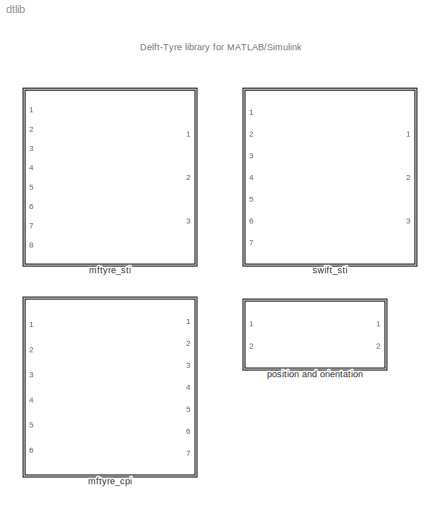
MODEL dtlib
KIND library
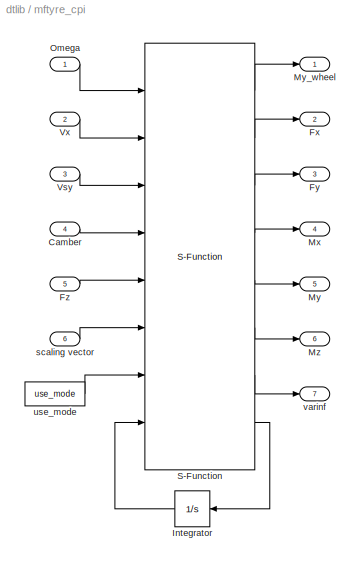
BLOCK [SubSystem] mftyre_cpi
  MaskCallbackString = ||
  MaskDescription = DELFT TYRE Magic Formula for Matlab\nMF-Tyre 5.2, MF-MCTyre 1.1\n\nCONTACT POINT  INTERFACE\n\n<copyright redacted>\nThe Netherlands
  MaskDisplay = image(imread('dtlogo.jpg','jpg'))\n\nport_label('input',1,'Omega')\nport_label('input',2,'Vx')\nport_label('input',3,'Vsy')\nport_label('input',4,'Camber')\nport_label('input',5,'Fz')\nport_label('input',6,'scaling vector')\n\nport_label('output',1,'My_wheel')\nport_label('output',2,'Fx')\nport_label('output',3,'Fy')\nport_label('output',4,'Mx')\nport_label('output',5,'My')\nport_label('output',6,...<+40ch>
  MaskEnableString = on,on,on
  MaskHelp = <!doctype html public \"-//w3c//dtd html 4.0 transitional//en\">\n<html>\n<head>\n   <meta http-equiv=\"Content-Type\" content=\"text/html; charset=iso-8859-1\">\n   <meta name=\"GENERATOR\" content=\"Mozilla/4.72 [en] (X11; I; SunOS 5.7 sun4u) [Netscape]\">\n</head>\n<body>\n<font size=+1><b>MFTYRE_CPI: </b>MF-Tyre with Contact Point Interface.</font><p><font size=+1>Calculates tyre forces and mo...<+4156ch>
  MaskIconFrame = on
  MaskIconOpaque = off
  MaskIconRotate = none
  MaskIconUnits = pixels
  MaskPromptString = Tyre ID [integer]|TYPARR [double array]|Use mode [integer]
  MaskStyleString = edit,edit,edit
  MaskToolTipString = on,on,on
  MaskTunableValueString = on,on,on
  MaskType = MFTYRE_CPI
  MaskValueString = 1|mfread('mft_car175_70R13.tir')|4
  MaskVariableAliases = ,,
  MaskVariables = idtyre=@1;typarr=@2;use_mode=@3;
  MaskVisibilityString = on,on,on
  Ports = [6, 7]
  RTWFcnNameOpts = Auto
  RTWFileNameOpts = Auto
  RTWSystemCode = Auto
  ShowPortLabels = on
  TreatAsAtomicUnit = off
BLOCK [Inport] mftyre_cpi/Camber
  Interpolate = on
  LatchInput = off
  Port = 4
BLOCK [Outport] mftyre_cpi/Fx
  InitialOutput = []
  OutputWhenDisabled = held
  Port = 2
BLOCK [Outport] mftyre_cpi/Fy
  InitialOutput = []
  OutputWhenDisabled = held
  Port = 3
BLOCK [Inport] mftyre_cpi/Fz
  Interpolate = on
  LatchInput = off
  Port = 5
BLOCK [Integrator] mftyre_cpi/Integrator
  AbsoluteTolerance = auto
  ExternalReset = none
  InitialCondition = 0
  InitialConditionSource = internal
  LimitOutput = off
  LowerSaturationLimit = -inf
  Ports = [1, 1]
  ShowSaturationPort = off
  ShowStatePort = off
  UpperSaturationLimit = inf
BLOCK [Outport] mftyre_cpi/Mx
  InitialOutput = []
  OutputWhenDisabled = held
  Port = 4
BLOCK [Outport] mftyre_cpi/My
  InitialOutput = []
  OutputWhenDisabled = held
  Port = 5
BLOCK [Outport] mftyre_cpi/My_wheel
  InitialOutput = []
  OutputWhenDisabled = held
  Port = 1
BLOCK [Outport] mftyre_cpi/Mz
  InitialOutput = []
  OutputWhenDisabled = held
  Port = 6
BLOCK [Inport] mftyre_cpi/Omega
  Interpolate = on
  LatchInput = off
  Port = 1
BLOCK [S-Function] mftyre_cpi/S-Function
  FunctionName = s_mftyre_cpi
  Parameters = idtyre typarr
  PortCounts = []
  Ports = [8, 8]
  SFunctionModules = ''
BLOCK [Inport] mftyre_cpi/Vsy
  Interpolate = on
  LatchInput = off
  Port = 3
BLOCK [Inport] mftyre_cpi/Vx
  Interpolate = on
  LatchInput = off
  Port = 2
BLOCK [Inport] mftyre_cpi/scaling vector
  Interpolate = on
  LatchInput = off
  Port = 6
BLOCK [Constant] mftyre_cpi/use_mode
  Value = use_mode
  VectorParams1D = on
BLOCK [Outport] mftyre_cpi/varinf
  InitialOutput = []
  OutputWhenDisabled = held
  Port = 7
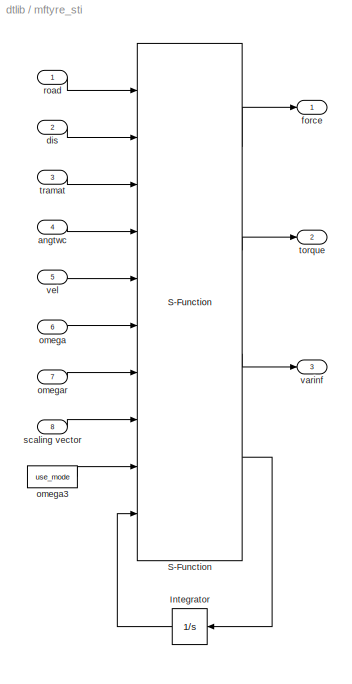
BLOCK [SubSystem] mftyre_sti
  MaskCallbackString = ||
  MaskDescription = DELFT TYRE Magic Formula for Matlab\nMF-Tyre 5.2, MF-MCTyre 1.1\n\nSTANDARD TYRE INTERFACE (STI 1.4)\n\n<copyright redacted>\nThe Netherlands
  MaskDisplay = image(imread('dtlogo.jpg','jpg'))\n\nport_label('input',1,'road')\nport_label('input',2,'dis')\nport_label('input',3,'tramat')\nport_label('input',4,'angtwc')\nport_label('input',5,'vel')\nport_label('input',6,'omega')\nport_label('input',7,'omegar')\nport_label('input',8,'scaling vector')\n\nport_label('output',1,'force')\nport_label('output',2,'torque')\nport_label('output',3,'varinf')
  MaskEnableString = on,on,on
  MaskHelp = <!doctype html public \"-//w3c//dtd html 4.0 transitional//en\">\n<html>\n<head>\n   <meta http-equiv=\"Content-Type\" content=\"text/html; charset=iso-8859-1\">\n   <meta name=\"GENERATOR\" content=\"Mozilla/4.72 [en] (X11; I; SunOS 5.7 sun4u) [Netscape]\">\n</head>\n<body>\n<font size=+1><b>MFTYRE_STI</b>: MF-Tyre with Standard Tyre Interface</font>\n<p><font size=+1>Calculates tyre forces and m...<+7779ch>
  MaskIconFrame = on
  MaskIconOpaque = off
  MaskIconRotate = none
  MaskIconUnits = pixels
  MaskPromptString = Tyre ID [integer]|TYPARR [double array]|Use mode [integer]
  MaskStyleString = edit,edit,edit
  MaskToolTipString = on,on,on
  MaskTunableValueString = on,on,on
  MaskType = MFTYRE_STI
  MaskValueString = 1|mfread('mft_car175_70R13.tir')|4
  MaskVariableAliases = ,,
  MaskVariables = idtyre=@1;typarr=@2;use_mode=@3;
  MaskVisibilityString = on,on,on
  Ports = [8, 3]
  RTWFcnNameOpts = Auto
  RTWFileNameOpts = Auto
  RTWSystemCode = Auto
  ShowPortLabels = on
  TreatAsAtomicUnit = off
BLOCK [Integrator] mftyre_sti/Integrator
  AbsoluteTolerance = auto
  ExternalReset = none
  InitialCondition = [0 0]
  InitialConditionSource = internal
  LimitOutput = off
  LowerSaturationLimit = -inf
  Ports = [1, 1]
  ShowSaturationPort = off
  ShowStatePort = off
  UpperSaturationLimit = inf
BLOCK [S-Function] mftyre_sti/S-Function
  FunctionName = s_mftyre_sti
  MaskIconFrame = on
  MaskIconOpaque = on
  MaskIconRotate = none
  MaskIconUnits = autoscale
  Parameters = idtyre typarr
  PortCounts = []
  Ports = [10, 4]
  SFunctionModules = ''
BLOCK [Inport] mftyre_sti/angtwc
  Interpolate = on
  LatchInput = off
  Port = 4
BLOCK [Inport] mftyre_sti/dis
  Interpolate = on
  LatchInput = off
  Port = 2
BLOCK [Outport] mftyre_sti/force
  InitialOutput = []
  OutputWhenDisabled = held
  Port = 1
BLOCK [Inport] mftyre_sti/omega
  Interpolate = on
  LatchInput = off
  Port = 6
BLOCK [Constant] mftyre_sti/omega3
  Value = use_mode
  VectorParams1D = on
BLOCK [Inport] mftyre_sti/omegar
  Interpolate = on
  LatchInput = off
  Port = 7
BLOCK [Inport] mftyre_sti/road
  Interpolate = on
  LatchInput = off
  Port = 1
BLOCK [Inport] mftyre_sti/scaling vector
  Interpolate = on
  LatchInput = off
  Port = 8
BLOCK [Outport] mftyre_sti/torque
  InitialOutput = []
  OutputWhenDisabled = held
  Port = 2
BLOCK [Inport] mftyre_sti/tramat
  Interpolate = on
  LatchInput = off
  Port = 3
BLOCK [Outport] mftyre_sti/varinf
  InitialOutput = []
  OutputWhenDisabled = held
  Port = 3
BLOCK [Inport] mftyre_sti/vel
  Interpolate = on
  LatchInput = off
  Port = 5
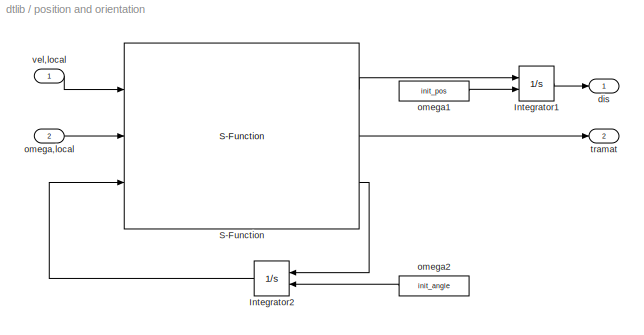
BLOCK [SubSystem] position and orientation
  MaskCallbackString = |
  MaskDescription = DELFT TYRE Local 2 global transformation for Matlab\nfor use with Standard Tyre Interface (STI).\n\nSTANDARD TYRE INTERFACE (STI 1.4)\n\n<copyright redacted>\nThe Netherlands
  MaskEnableString = on,on
  MaskHelp = <!doctype html public \"-//w3c//dtd html 4.0 transitional//en\">\n<html>\n<head>\n   <meta http-equiv=\"Content-Type\" content=\"text/html; charset=iso-8859-1\">\n   <meta name=\"GENERATOR\" content=\"Mozilla/4.72 [en] (X11; I; SunOS 5.7 sun4u) [Netscape]\">\n</head>\n<body>\n<font size=+1><b>Position and orientation</b>: </font><font size=\"4\">Calculation \nof transformation matrix and global po...<+1835ch>
  MaskIconFrame = on
  MaskIconOpaque = off
  MaskIconRotate = none
  MaskIconUnits = pixels
  MaskPromptString = Wheel center position (global)|Wheel center orientation (global, Bryant angles, rotation seq. ZXY)
  MaskStyleString = edit,edit
  MaskToolTipString = on,on
  MaskTunableValueString = on,on
  MaskType = Position and Orientation
  MaskValueString = [0 0 0.28]|[0 0 0]
  MaskVariableAliases = ,
  MaskVariables = init_pos=@1;init_angle=@2;
  MaskVisibilityString = on,on
  Ports = [2, 2]
  RTWFcnNameOpts = Auto
  RTWFileNameOpts = Auto
  RTWSystemCode = Auto
  ShowPortLabels = on
  TreatAsAtomicUnit = off
BLOCK [Integrator] position and orientation/Integrator1
  AbsoluteTolerance = auto
  ExternalReset = none
  InitialCondition = 0
  InitialConditionSource = external
  LimitOutput = off
  LowerSaturationLimit = -inf
  Ports = [2, 1]
  ShowSaturationPort = off
  ShowStatePort = off
  UpperSaturationLimit = inf
BLOCK [Integrator] position and orientation/Integrator2
  AbsoluteTolerance = auto
  ExternalReset = none
  InitialCondition = 0
  InitialConditionSource = external
  LimitOutput = off
  LowerSaturationLimit = -inf
  Ports = [2, 1]
  ShowSaturationPort = off
  ShowStatePort = off
  UpperSaturationLimit = inf
BLOCK [S-Function] position and orientation/S-Function
  FunctionName = s_local2global
  MaskIconFrame = on
  MaskIconOpaque = on
  MaskIconRotate = none
  MaskIconUnits = autoscale
  PortCounts = []
  Ports = [3, 3]
  SFunctionModules = ''
BLOCK [Outport] position and orientation/dis
  InitialOutput = []
  OutputWhenDisabled = held
  Port = 1
BLOCK [Inport] position and orientation/omega,local
  Interpolate = on
  LatchInput = off
  Port = 2
BLOCK [Constant] position and orientation/omega1
  Value = init_pos
  VectorParams1D = on
BLOCK [Constant] position and orientation/omega2
  Value = init_angle
  VectorParams1D = on
BLOCK [Outport] position and orientation/tramat
  InitialOutput = []
  OutputWhenDisabled = held
  Port = 2
BLOCK [Inport] position and orientation/vel,local
  Interpolate = on
  LatchInput = off
  Port = 1
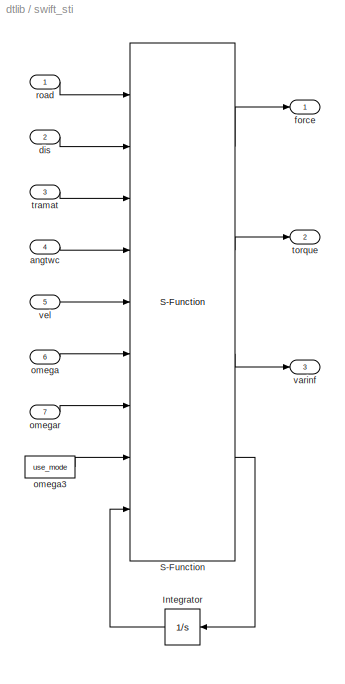
BLOCK [SubSystem] swift_sti
  MaskCallbackString = ||||
  MaskDescription = DELFT TYRE Magic Formula for Matlab\nSWIFT-Tyre 1.1\n\nSTANDARD TYRE INTERFACE (STI 1.4)\n\n<copyright redacted>\nThe Netherlands
  MaskDisplay = image(imread('dtlogo.jpg','jpg'))\n\nport_label('input',1,'road')\nport_label('input',2,'dis')\nport_label('input',3,'tramat')\nport_label('input',4,'angtwc')\nport_label('input',5,'vel')\nport_label('input',6,'omega')\nport_label('input',7,'omegar')\n\nport_label('output',1,'force')\nport_label('output',2,'torque')\nport_label('output',3,'varinf')
  MaskEnableString = on,on,on,on,on
  MaskHelp = <!doctype html public \"-//w3c//dtd html 4.0 transitional//en\">\n<html>\n<head>\n   <meta http-equiv=\"Content-Type\" content=\"text/html; charset=iso-8859-1\">\n   <meta name=\"GENERATOR\" content=\"Mozilla/4.72 [en] (X11; I; SunOS 5.7 sun4u) [Netscape]\">\n</head>\n<body>\n<font size=+1><b>SWIFT_STI</b>: SWIFT-Tyre with Standard Tyre Interface</font>\n<p><font size=+1>Calculates tyre forces and...<+6492ch>
  MaskIconFrame = on
  MaskIconOpaque = off
  MaskIconRotate = none
  MaskIconUnits = pixels
  MaskInitialization = idroad=1;\nif (road_popup==2)\n  idroad=100;\nend
  MaskPromptString = Tyre ID [integer]|Use mode [integer]|Tyre property file [string]|Road|Road data file [string]
  MaskStyleString = edit,edit,edit,popup(External input (smooth road)|Data file (effective inputs)),edit
  MaskToolTipString = on,on,on,on,on
  MaskTunableValueString = on,on,on,on,on
  MaskType = SWIFT_STI
  MaskValueString = 1|24|'swt_car205_60R15.tir'|Data file (effective inputs)|'swt_road.rdf'
  MaskVariableAliases = ,,,,
  MaskVariables = idtyre=@1;use_mode=@2;tpfname=@3;road_popup=@4;rdfname=@5;
  MaskVisibilityString = on,on,on,on,on
  Ports = [7, 3]
  RTWFcnNameOpts = Auto
  RTWFileNameOpts = Auto
  RTWSystemCode = Auto
  ShowPortLabels = on
  TreatAsAtomicUnit = off
BLOCK [Integrator] swift_sti/Integrator
  AbsoluteTolerance = auto
  ExternalReset = none
  InitialCondition = [0 0 0 0 0 0 0 0 0 0 0 0 0 0 0 0 0 0 0 0 0 0 0 0 0 0 0 0 0 0]
  InitialConditionSource = internal
  LimitOutput = off
  LowerSaturationLimit = -inf
  Ports = [1, 1]
  ShowSaturationPort = off
  ShowStatePort = off
  UpperSaturationLimit = inf
BLOCK [S-Function] swift_sti/S-Function
  FunctionName = s_swift_sti
  Parameters = idtyre idroad tpfname rdfname
  PortCounts = []
  Ports = [9, 4]
  SFunctionModules = ''
BLOCK [Inport] swift_sti/angtwc
  Interpolate = on
  LatchInput = off
  Port = 4
BLOCK [Inport] swift_sti/dis
  Interpolate = on
  LatchInput = off
  Port = 2
BLOCK [Outport] swift_sti/force
  InitialOutput = []
  OutputWhenDisabled = held
  Port = 1
BLOCK [Inport] swift_sti/omega
  Interpolate = on
  LatchInput = off
  Port = 6
BLOCK [Constant] swift_sti/omega3
  Value = use_mode
  VectorParams1D = on
BLOCK [Inport] swift_sti/omegar
  Interpolate = on
  LatchInput = off
  Port = 7
BLOCK [Inport] swift_sti/road
  Interpolate = on
  LatchInput = off
  Port = 1
BLOCK [Outport] swift_sti/torque
  InitialOutput = []
  OutputWhenDisabled = held
  Port = 2
BLOCK [Inport] swift_sti/tramat
  Interpolate = on
  LatchInput = off
  Port = 3
BLOCK [Outport] swift_sti/varinf
  InitialOutput = []
  OutputWhenDisabled = held
  Port = 3
BLOCK [Inport] swift_sti/vel
  Interpolate = on
  LatchInput = off
  Port = 5
LINE mftyre_cpi/Camber:1 -> mftyre_cpi/S-Function:4
LINE mftyre_cpi/Fz:1 -> mftyre_cpi/S-Function:5
LINE mftyre_cpi/Integrator:1 -> mftyre_cpi/S-Function:8
LINE mftyre_cpi/Omega:1 -> mftyre_cpi/S-Function:1
LINE mftyre_cpi/S-Function:1 -> mftyre_cpi/My_wheel:1
LINE mftyre_cpi/S-Function:2 -> mftyre_cpi/Fx:1
LINE mftyre_cpi/S-Function:3 -> mftyre_cpi/Fy:1
LINE mftyre_cpi/S-Function:4 -> mftyre_cpi/Mx:1
LINE mftyre_cpi/S-Function:5 -> mftyre_cpi/My:1
LINE mftyre_cpi/S-Function:6 -> mftyre_cpi/Mz:1
LINE mftyre_cpi/S-Function:7 -> mftyre_cpi/varinf:1
LINE mftyre_cpi/S-Function:8 -> mftyre_cpi/Integrator:1
LINE mftyre_cpi/Vsy:1 -> mftyre_cpi/S-Function:3
LINE mftyre_cpi/Vx:1 -> mftyre_cpi/S-Function:2
LINE mftyre_cpi/scaling vector:1 -> mftyre_cpi/S-Function:6
LINE mftyre_cpi/use_mode:1 -> mftyre_cpi/S-Function:7
LINE mftyre_sti/Integrator:1 -> mftyre_sti/S-Function:10
LINE mftyre_sti/S-Function:1 -> mftyre_sti/force:1
LINE mftyre_sti/S-Function:2 -> mftyre_sti/torque:1
LINE mftyre_sti/S-Function:3 -> mftyre_sti/varinf:1
LINE mftyre_sti/S-Function:4 -> mftyre_sti/Integrator:1
LINE mftyre_sti/angtwc:1 -> mftyre_sti/S-Function:4
LINE mftyre_sti/dis:1 -> mftyre_sti/S-Function:2
LINE mftyre_sti/omega3:1 -> mftyre_sti/S-Function:9
LINE mftyre_sti/omega:1 -> mftyre_sti/S-Function:6
LINE mftyre_sti/omegar:1 -> mftyre_sti/S-Function:7
LINE mftyre_sti/road:1 -> mftyre_sti/S-Function:1
LINE mftyre_sti/scaling vector:1 -> mftyre_sti/S-Function:8
LINE mftyre_sti/tramat:1 -> mftyre_sti/S-Function:3
LINE mftyre_sti/vel:1 -> mftyre_sti/S-Function:5
LINE position and orientation/Integrator1:1 -> position and orientation/dis:1
LINE position and orientation/Integrator2:1 -> position and orientation/S-Function:3
LINE position and orientation/S-Function:1 -> position and orientation/Integrator1:1
LINE position and orientation/S-Function:2 -> position and orientation/tramat:1
LINE position and orientation/S-Function:3 -> position and orientation/Integrator2:1
LINE position and orientation/omega,local:1 -> position and orientation/S-Function:2
LINE position and orientation/omega1:1 -> position and orientation/Integrator1:2
LINE position and orientation/omega2:1 -> position and orientation/Integrator2:2
LINE position and orientation/vel,local:1 -> position and orientation/S-Function:1
LINE swift_sti/Integrator:1 -> swift_sti/S-Function:9
LINE swift_sti/S-Function:1 -> swift_sti/force:1
LINE swift_sti/S-Function:2 -> swift_sti/torque:1
LINE swift_sti/S-Function:3 -> swift_sti/varinf:1
LINE swift_sti/S-Function:4 -> swift_sti/Integrator:1
LINE swift_sti/angtwc:1 -> swift_sti/S-Function:4
LINE swift_sti/dis:1 -> swift_sti/S-Function:2
LINE swift_sti/omega3:1 -> swift_sti/S-Function:8
LINE swift_sti/omega:1 -> swift_sti/S-Function:6
LINE swift_sti/omegar:1 -> swift_sti/S-Function:7
LINE swift_sti/road:1 -> swift_sti/S-Function:1
LINE swift_sti/tramat:1 -> swift_sti/S-Function:3
LINE swift_sti/vel:1 -> swift_sti/S-Function:5
